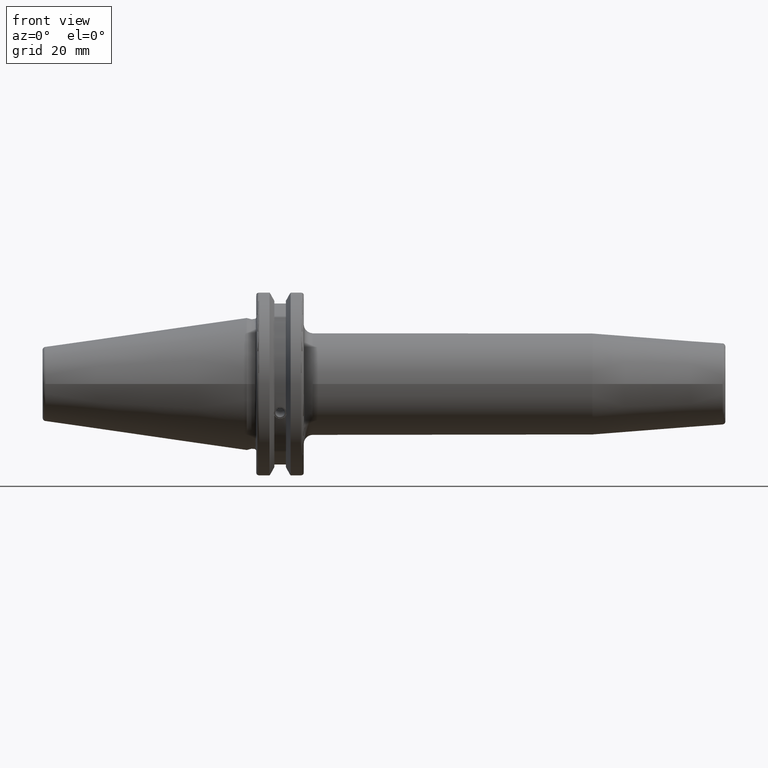
[diagram: clean part render]
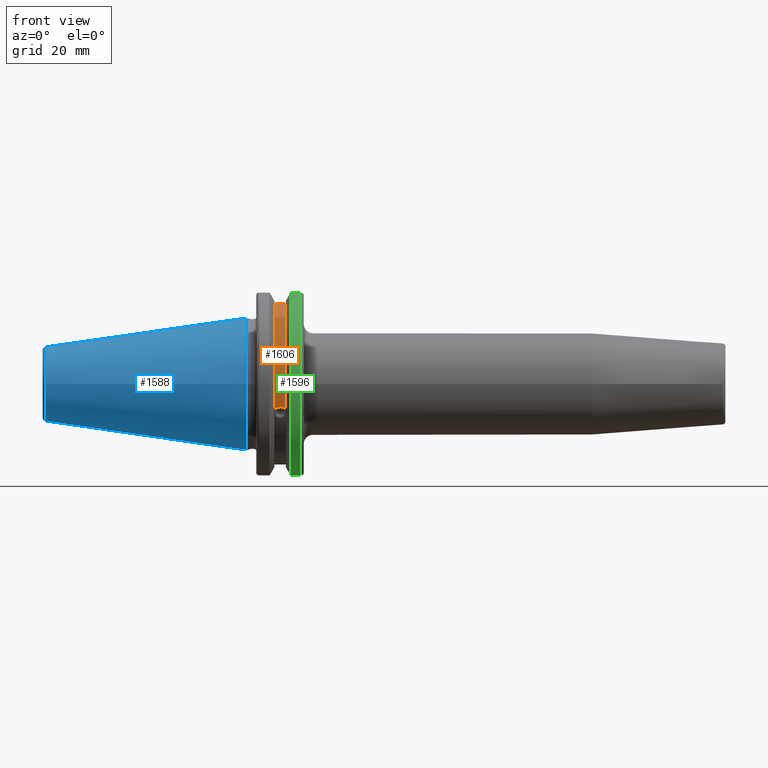
[diagram: same view with three faces highlighted in distinct colors, each labeled with its STEP entity id]
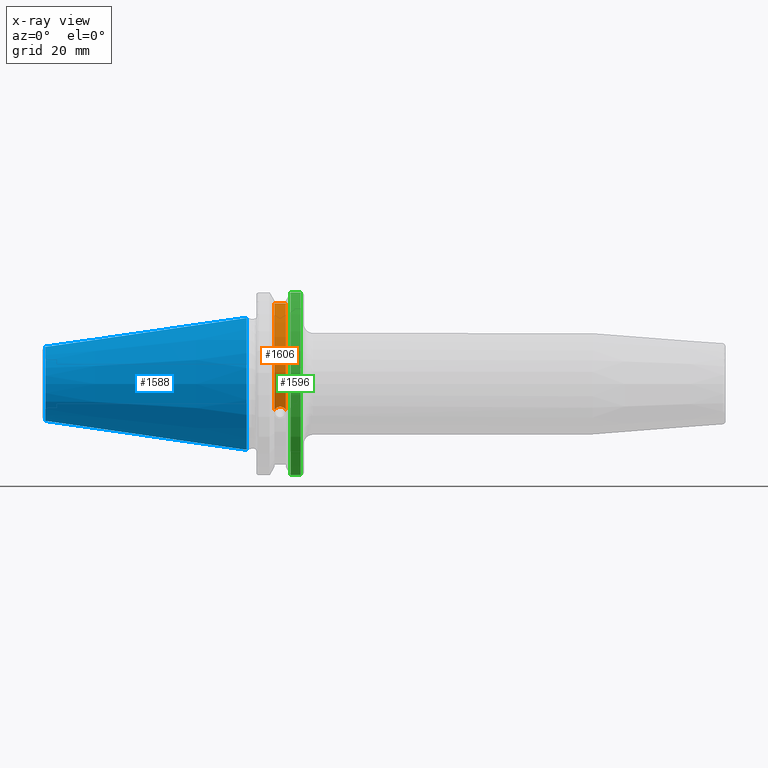
[diagram: x-ray of the same camera — body ghosted, the three highlighted faces saturated]
A machine part, front view with three faces highlighted in distinct colors.
The next image is the same camera in x-ray (body ghosted, the three faces saturated) — at least one of them is partly hidden behind the body in this view.
Their STEP definitions:

[orange] entity #1606 — the highlighted cylindrical surface (partial cylindrical patch) has radius 28.15 mm, axis along (1, 0, 0).
#36=B_SPLINE_CURVE_WITH_KNOTS('',3,(#2512,#2513,#2514,#2515,#2516,#2517,
#2518,#2519,#2520,#2521,#2522,#2523,#2524,#2525),.UNSPECIFIED.,.F.,.F.,
(4,2,2,2,2,2,4),(0.401639126382403,0.474814416953736,0.553950208498303,
0.63308600004287,0.712221791587437,0.791357583132004,0.864532873703336),
 .UNSPECIFIED.);
#173=CYLINDRICAL_SURFACE('',#1809,28.15);
#254=FACE_OUTER_BOUND('',#360,.T.);
#360=EDGE_LOOP('',(#1461,#1462,#1463,#1464));
#440=LINE('',#2917,#536);
#536=VECTOR('',#2151,10.);
#635=CIRCLE('',#1810,28.15);
#636=CIRCLE('',#1811,28.15);
#691=VERTEX_POINT('',#2509);
#692=VERTEX_POINT('',#2511);
#773=VERTEX_POINT('',#2914);
#774=VERTEX_POINT('',#2916);
#866=EDGE_CURVE('',#692,#691,#36,.T.);
#977=EDGE_CURVE('',#774,#773,#440,.T.);
#1028=EDGE_CURVE('',#774,#691,#635,.T.);
#1029=EDGE_CURVE('',#773,#692,#636,.T.);
#1461=ORIENTED_EDGE('',*,*,#866,.T.);
#1462=ORIENTED_EDGE('',*,*,#1028,.F.);
#1463=ORIENTED_EDGE('',*,*,#977,.T.);
#1464=ORIENTED_EDGE('',*,*,#1029,.T.);
#1606=ADVANCED_FACE('',(#254),#173,.T.);
#1809=AXIS2_PLACEMENT_3D('',#3065,#2259,#2260);
#1810=AXIS2_PLACEMENT_3D('',#3066,#2261,#2262);
#1811=AXIS2_PLACEMENT_3D('',#3067,#2263,#2264);
#2151=DIRECTION('',(-1.,0.,0.));
#2259=DIRECTION('center_axis',(1.,0.,0.));
#2260=DIRECTION('ref_axis',(0.,-0.887654187951484,0.46051063246378));
#2261=DIRECTION('center_axis',(1.,0.,0.));
#2262=DIRECTION('ref_axis',(0.,0.,-1.));
#2263=DIRECTION('center_axis',(1.,0.,0.));
#2264=DIRECTION('ref_axis',(0.,0.,-1.));
#2509=CARTESIAN_POINT('',(13.0491,-26.734714844398,-8.81348524641211));
#2511=CARTESIAN_POINT('',(9.2191,-26.734714844398,-8.81348524641212));
#2512=CARTESIAN_POINT('Ctrl Pts',(9.2191,-26.734714844398,-8.81348524641212));
#2513=CARTESIAN_POINT('Ctrl Pts',(9.32533057097183,-26.8086519721597,-8.58920529678291));
#2514=CARTESIAN_POINT('Ctrl Pts',(9.47682013770509,-26.8729987454904,-8.38416529997369));
#2515=CARTESIAN_POINT('Ctrl Pts',(9.83557062657411,-26.9778908791383,-8.04056861831091));
#2516=CARTESIAN_POINT('Ctrl Pts',(10.0716450112988,-27.0233016799732,-7.88512567185902));
#2517=CARTESIAN_POINT('Ctrl Pts',(10.5890125426388,-27.0826966800569,-7.6786444840004));
#2518=CARTESIAN_POINT('Ctrl Pts',(10.8703140281848,-27.0968804077294,-7.62768458768512));
#2519=CARTESIAN_POINT('Ctrl Pts',(11.3978859718152,-27.0968804077294,-7.62768458768512));
#2520=CARTESIAN_POINT('Ctrl Pts',(11.6791874573612,-27.0826966800569,-7.6786444840004));
#2521=CARTESIAN_POINT('Ctrl Pts',(12.1965549887012,-27.0233016799732,-7.88512567185902));
#2522=CARTESIAN_POINT('Ctrl Pts',(12.4326293734259,-26.9778908791383,-8.04056861831091));
#2523=CARTESIAN_POINT('Ctrl Pts',(12.7913798622949,-26.8729987454904,-8.38416529997369));
#2524=CARTESIAN_POINT('Ctrl Pts',(12.9428694290282,-26.8086519721597,-8.5892052967829));
#2525=CARTESIAN_POINT('Ctrl Pts',(13.0491,-26.734714844398,-8.81348524641211));
#2914=CARTESIAN_POINT('',(9.2191,-8.19,26.932255754021));
#2916=CARTESIAN_POINT('',(13.0491,-8.19,26.932255754021));
#2917=CARTESIAN_POINT('',(11.1341,-8.19,26.932255754021));
#3065=CARTESIAN_POINT('Origin',(11.1341,0.,0.));
#3066=CARTESIAN_POINT('Origin',(13.0491,0.,0.));
#3067=CARTESIAN_POINT('Origin',(9.2191,0.,0.));

[blue] entity #1588 — the highlighted conical surface has half-angle 8.297 deg.
#236=FACE_OUTER_BOUND('',#342,.T.);
#342=EDGE_LOOP('',(#1381,#1382,#1383,#1384,#1385));
#449=LINE('',#3012,#545);
#545=VECTOR('',#2198,17.2484375);
#624=CIRCLE('',#1779,12.3966635780937);
#625=CIRCLE('',#1780,12.3966635780937);
#629=CIRCLE('',#1786,22.225);
#784=VERTEX_POINT('',#2999);
#785=VERTEX_POINT('',#3000);
#788=VERTEX_POINT('',#3010);
#998=EDGE_CURVE('',#784,#785,#624,.T.);
#999=EDGE_CURVE('',#785,#784,#625,.T.);
#1003=EDGE_CURVE('',#788,#788,#629,.T.);
#1004=EDGE_CURVE('',#788,#785,#449,.T.);
#1381=ORIENTED_EDGE('',*,*,#1003,.F.);
#1382=ORIENTED_EDGE('',*,*,#1004,.T.);
#1383=ORIENTED_EDGE('',*,*,#998,.F.);
#1384=ORIENTED_EDGE('',*,*,#999,.F.);
#1385=ORIENTED_EDGE('',*,*,#1004,.F.);
#1521=CONICAL_SURFACE('',#1785,17.2484375,0.144812498238939);
#1588=ADVANCED_FACE('',(#236),#1521,.T.);
#1779=AXIS2_PLACEMENT_3D('',#3001,#2182,#2183);
#1780=AXIS2_PLACEMENT_3D('',#3002,#2184,#2185);
#1785=AXIS2_PLACEMENT_3D('',#3009,#2194,#2195);
#1786=AXIS2_PLACEMENT_3D('',#3011,#2196,#2197);
#2182=DIRECTION('center_axis',(-1.,0.,0.));
#2183=DIRECTION('ref_axis',(0.,-1.,3.06161699786838E-17));
#2184=DIRECTION('center_axis',(-1.,0.,0.));
#2185=DIRECTION('ref_axis',(0.,-1.,3.06161699786838E-17));
#2194=DIRECTION('center_axis',(1.,0.,0.));
#2195=DIRECTION('ref_axis',(0.,1.,0.));
#2196=DIRECTION('center_axis',(1.,0.,0.));
#2197=DIRECTION('ref_axis',(0.,0.,-1.));
#2198=DIRECTION('',(-0.989532981063282,0.144306893071729,1.76724974695192E-17));
#2999=CARTESIAN_POINT('',(-67.3943068930717,-1.5181534371019E-15,12.3966635780937));
#3000=CARTESIAN_POINT('',(-67.3943068930718,-12.3966635780937,-1.5181534371019E-15));
#3001=CARTESIAN_POINT('Origin',(-67.3943068930717,0.,-1.89769179637738E-15));
#3002=CARTESIAN_POINT('Origin',(-67.3943068930717,0.,-1.89769179637738E-15));
#3009=CARTESIAN_POINT('Origin',(-34.125,0.,0.));
#3010=CARTESIAN_POINT('',(0.,-22.225,-2.72177751110499E-15));
#3011=CARTESIAN_POINT('Origin',(0.,0.,0.));
#3012=CARTESIAN_POINT('',(-34.125,-17.2484375,-2.11232437746682E-15));

[green] entity #1596 — the highlighted cylindrical surface (partial cylindrical patch) has radius 31.75 mm, axis along (1, 0, 0).
#168=CYLINDRICAL_SURFACE('',#1794,31.75);
#244=FACE_OUTER_BOUND('',#350,.T.);
#350=EDGE_LOOP('',(#1422,#1423,#1424,#1425));
#460=LINE('',#3037,#556);
#461=LINE('',#3039,#557);
#556=VECTOR('',#2223,10.);
#557=VECTOR('',#2226,10.);
#596=CIRCLE('',#1710,31.75);
#620=CIRCLE('',#1766,31.75);
#705=VERTEX_POINT('',#2597);
#706=VERTEX_POINT('',#2601);
#768=VERTEX_POINT('',#2880);
#769=VERTEX_POINT('',#2889);
#884=EDGE_CURVE('',#706,#705,#596,.T.);
#970=EDGE_CURVE('',#768,#769,#620,.T.);
#1016=EDGE_CURVE('',#769,#705,#460,.T.);
#1017=EDGE_CURVE('',#706,#768,#461,.T.);
#1422=ORIENTED_EDGE('',*,*,#970,.F.);
#1423=ORIENTED_EDGE('',*,*,#1017,.F.);
#1424=ORIENTED_EDGE('',*,*,#884,.T.);
#1425=ORIENTED_EDGE('',*,*,#1016,.F.);
#1596=ADVANCED_FACE('',(#244),#168,.T.);
#1710=AXIS2_PLACEMENT_3D('',#2602,#2000,#2001);
#1766=AXIS2_PLACEMENT_3D('',#2890,#2144,#2145);
#1794=AXIS2_PLACEMENT_3D('',#3038,#2224,#2225);
#2000=DIRECTION('center_axis',(1.,0.,0.));
#2001=DIRECTION('ref_axis',(0.,0.,-1.));
#2144=DIRECTION('center_axis',(1.,0.,0.));
#2145=DIRECTION('ref_axis',(0.,-1.,1.60812264967664E-16));
#2223=DIRECTION('',(-1.,0.,0.));
#2224=DIRECTION('center_axis',(1.,0.,0.));
#2225=DIRECTION('ref_axis',(0.,-1.,1.22464679914735E-16));
#2226=DIRECTION('',(1.,0.,0.));
#2597=CARTESIAN_POINT('',(14.6602667690756,-8.67204822802686,-30.5427254764662));
#2601=CARTESIAN_POINT('',(14.6602667690756,-8.67204822802685,30.5427254764662));
#2602=CARTESIAN_POINT('Origin',(14.6602667690756,0.,0.));
#2880=CARTESIAN_POINT('',(18.05,-8.67204822802685,30.5427254764662));
#2889=CARTESIAN_POINT('',(18.05,-8.67204822802686,-30.5427254764662));
#2890=CARTESIAN_POINT('Origin',(18.05,0.,0.));
#3037=CARTESIAN_POINT('',(16.8551333845378,-8.67204822802686,-30.5427254764662));
#3038=CARTESIAN_POINT('Origin',(16.8551333845378,0.,0.));
#3039=CARTESIAN_POINT('',(16.8551333845378,-8.67204822802685,30.5427254764662));